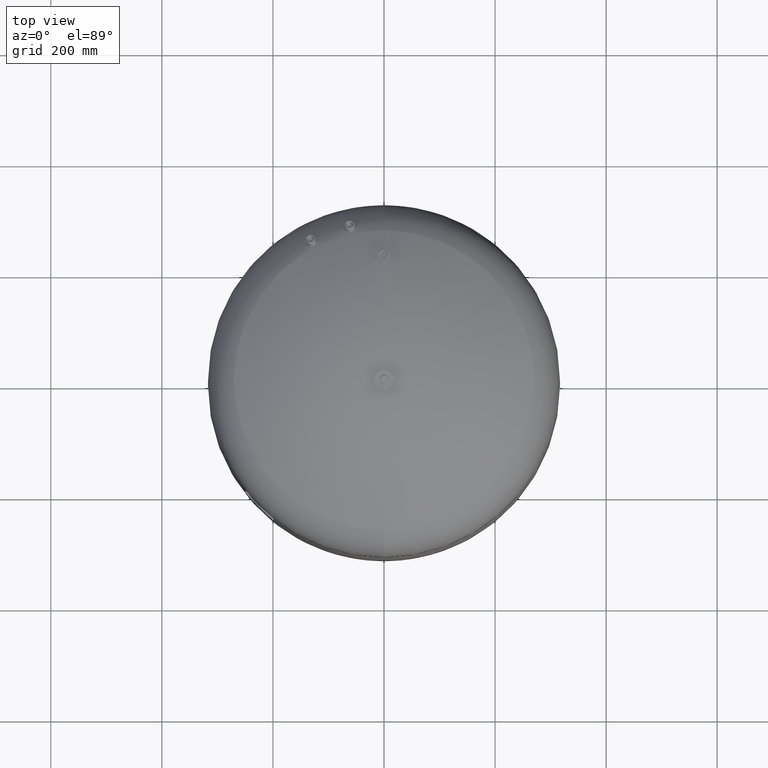
[diagram: clean part render]
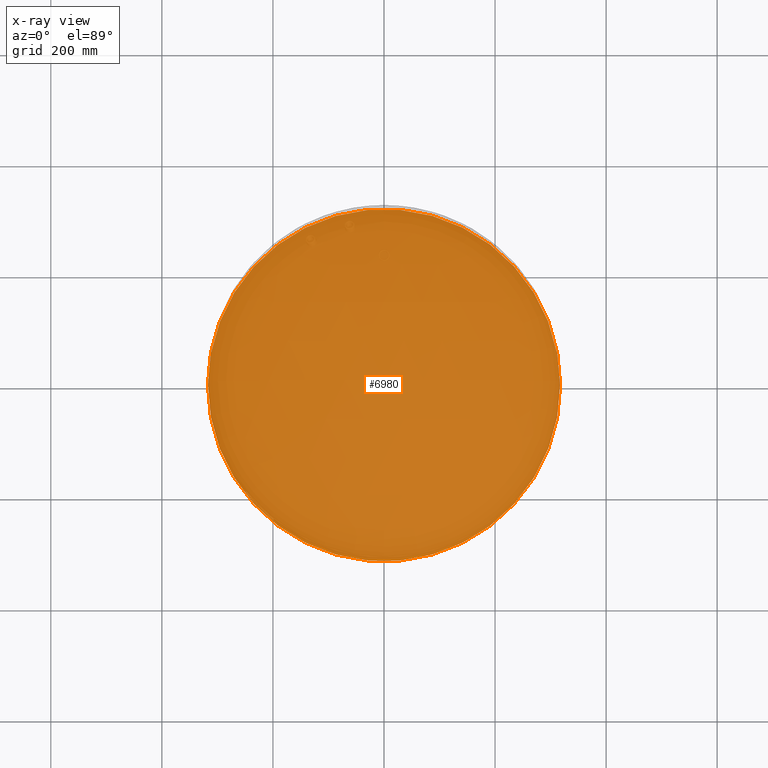
[diagram: x-ray — body ghosted, one internal face saturated and labeled with its STEP entity id]
A machine part, top view, then the same camera in x-ray: the body is ghosted and one INTERNAL B-rep face — a face not visible from any outside direction — is saturated and labeled: STEP entity #6980.
In plain terms, the highlighted planar face has unit normal (0, 0, 1).
Its self-contained STEP definition (entity closure, byte-faithful):
#6778=CARTESIAN_POINT('',(-317.0,-2.975892E-014,351.999999999999890));
#6779=VERTEX_POINT('',#6778);
#6788=CARTESIAN_POINT('',(317.0,9.061104E-015,351.999999999999940));
#6789=VERTEX_POINT('',#6788);
#6790=CARTESIAN_POINT('',(-1.558411E-014,-2.975892E-014,351.999999999999890));
#6791=DIRECTION('',(0.0,0.0,1.0));
#6792=DIRECTION('',(-1.0,0.0,0.0));
#6793=AXIS2_PLACEMENT_3D('',#6790,#6791,#6792);
#6794=CIRCLE('',#6793,317.0);
#6795=EDGE_CURVE('',#6789,#6779,#6794,.T.);
#6961=CARTESIAN_POINT('',(-1.558411E-014,-2.975892E-014,351.999999999999890));
#6962=DIRECTION('',(0.0,0.0,1.0));
#6963=DIRECTION('',(-1.0,0.0,0.0));
#6964=AXIS2_PLACEMENT_3D('',#6961,#6962,#6963);
#6965=CIRCLE('',#6964,317.0);
#6966=EDGE_CURVE('',#6779,#6789,#6965,.T.);
#6971=CARTESIAN_POINT('',(-158.500000000000000,-2.975892E-014,351.999999999999940));
#6972=DIRECTION('',(0.0,0.0,1.0));
#6973=DIRECTION('',(0.0,-1.0,0.0));
#6974=AXIS2_PLACEMENT_3D('',#6971,#6972,#6973);
#6975=PLANE('',#6974);
#6976=ORIENTED_EDGE('',*,*,#6966,.T.);
#6977=ORIENTED_EDGE('',*,*,#6795,.T.);
#6978=EDGE_LOOP('',(#6976,#6977));
#6979=FACE_OUTER_BOUND('',#6978,.T.);
#6980=ADVANCED_FACE('',(#6979),#6975,.T.);